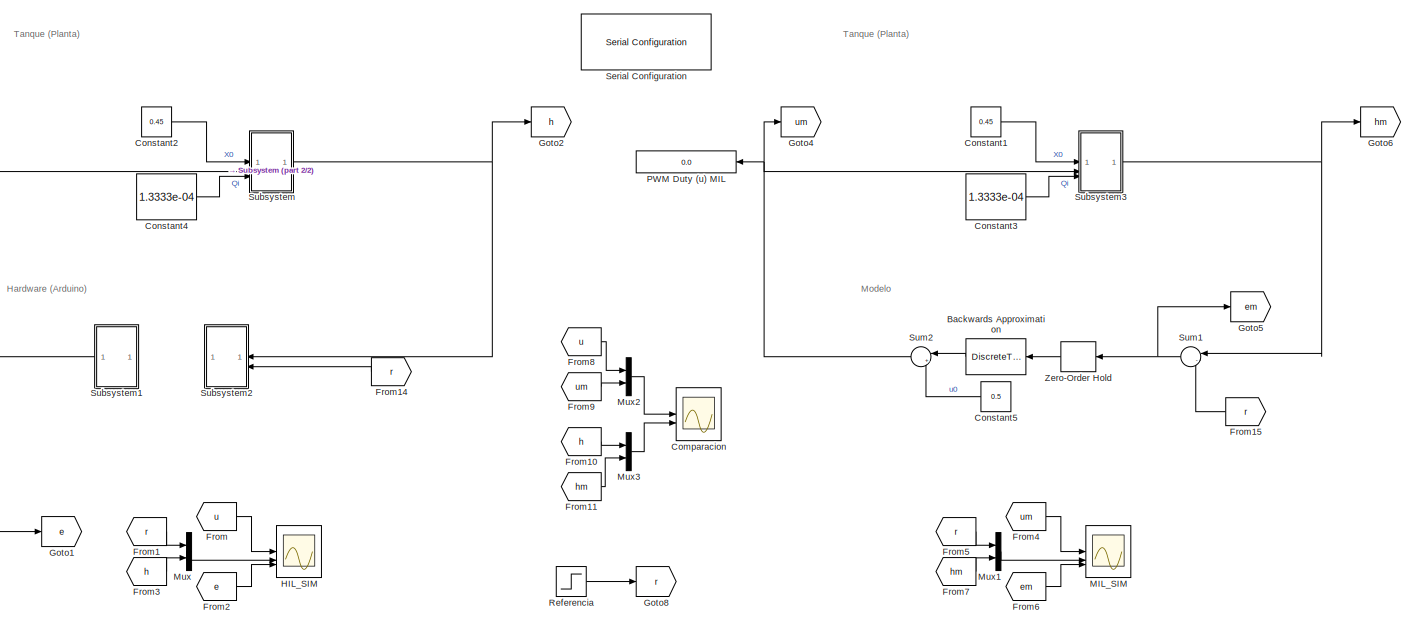
[diagram: root canvas - part 1/2, most of the canvas]
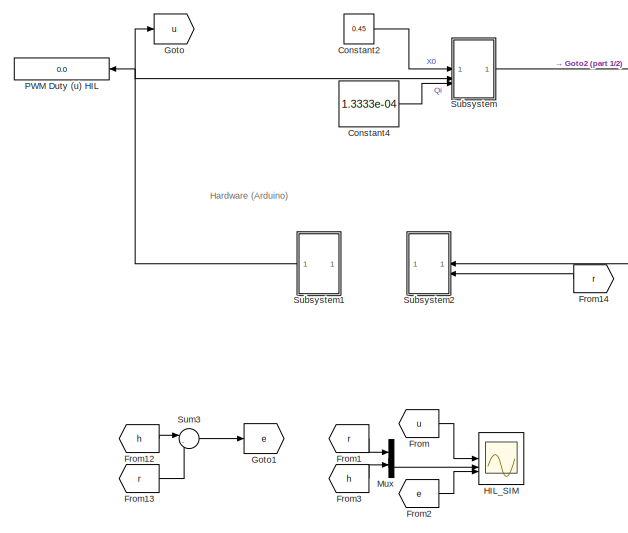
[diagram: root canvas - part 2/2, left side, full height]
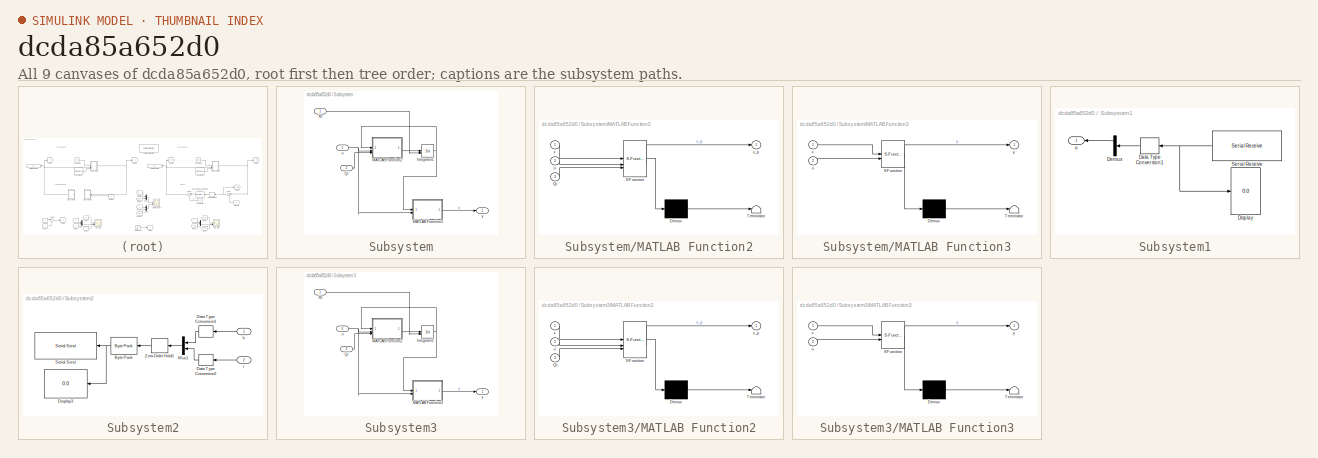
[diagram: thumbnail index - all 9 canvases of the model, root first then tree order]
MODEL slx_dcda85a652d0
KIND model
CONFIG AbsTol = auto
CONFIG EnableMultiTasking = off
CONFIG FixedStep = 0.001
CONFIG MaxStep = auto
CONFIG MinStep = auto
CONFIG RelTol = 1e-4
CONFIG SampleTimeConstraint = Unconstrained
CONFIG SolverName = VariableStepAuto
CONFIG StartTime = 0.0
CONFIG StopTime = 600
BLOCK [DiscreteTransferFcn] Backwards Approximation
  Denominator = [1 -1.9709 0.9709]
  InputPortMap = u0
  NameLocation = top
  Numerator = [-0.1459 0.1456 0]
  SampleTime = 1
  StateName = C_for
  a0EqualsOne = on
BLOCK [Scope] Comparacion
  Floating = off
  NumInputPorts = 2
  ScopeSpecificationString = Simulink.scopes.TimeScopeBlockCfg('CurrentConfiguration', extmgr.ConfigurationSet(extmgr.Configuration('Core','General UI',true,'FigureColor',[1 1 1]),extmgr.Configuration('Core','Source UI',true),extmgr.Configuration('Sources','WiredSimulink',true,'DataLoggingVariableName','ScopeData1'),extmgr.Configuration('Visuals','Time Domain',true,'SerializedDisplays',{struct('MinYLimReal','0.47973','MaxYLim...<+2653ch>
BLOCK [Constant] Constant1
  Value = 0.45
BLOCK [Constant] Constant2
  Value = 0.45
BLOCK [Constant] Constant3
  Value = 1.3333e-04
BLOCK [Constant] Constant4
  Value = 1.3333e-04
BLOCK [Constant] Constant5
  Value = 0.5
BLOCK [From] From
  GotoTag = u
BLOCK [From] From1
  GotoTag = r
BLOCK [From] From10
  GotoTag = h
BLOCK [From] From11
  GotoTag = hm
BLOCK [From] From12
  GotoTag = h
BLOCK [From] From13
  GotoTag = r
BLOCK [From] From14
  GotoTag = r
  NameLocation = top
BLOCK [From] From15
  GotoTag = r
  NameLocation = top
BLOCK [From] From2
  GotoTag = e
BLOCK [From] From3
  GotoTag = h
BLOCK [From] From4
  GotoTag = um
BLOCK [From] From5
  GotoTag = r
BLOCK [From] From6
  GotoTag = em
BLOCK [From] From7
  GotoTag = hm
BLOCK [From] From8
  GotoTag = u
BLOCK [From] From9
  GotoTag = um
BLOCK [Goto] Goto
  GotoTag = u
BLOCK [Goto] Goto1
  GotoTag = e
BLOCK [Goto] Goto2
  GotoTag = h
BLOCK [Goto] Goto4
  GotoTag = um
BLOCK [Goto] Goto5
  GotoTag = em
BLOCK [Goto] Goto6
  GotoTag = hm
BLOCK [Goto] Goto8
  GotoTag = r
BLOCK [Scope] HIL_SIM
  Floating = off
  NumInputPorts = 3
  ScopeSpecificationString = Simulink.scopes.TimeScopeBlockCfg('CurrentConfiguration', extmgr.ConfigurationSet(extmgr.Configuration('Core','General UI',true,'FigureColor',[1 1 1]),extmgr.Configuration('Core','Source UI',true),extmgr.Configuration('Sources','WiredSimulink',true,'DataLoggingVariableName','ScopeData1'),extmgr.Configuration('Visuals','Time Domain',true,'SerializedDisplays',{struct('MinYLimReal','0.50148','MaxYLim...<+3314ch>
BLOCK [Scope] MIL_SIM
  Floating = off
  NumInputPorts = 3
  ScopeSpecificationString = Simulink.scopes.TimeScopeBlockCfg('CurrentConfiguration', extmgr.ConfigurationSet(extmgr.Configuration('Core','General UI',true,'FigureColor',[1 1 1]),extmgr.Configuration('Core','Source UI',true),extmgr.Configuration('Sources','WiredSimulink',true,'DataLoggingVariableName','ScopeData2'),extmgr.Configuration('Visuals','Time Domain',true,'SerializedDisplays',{struct('MinYLimReal','0.47986','MaxYLim...<+3310ch>
BLOCK [Mux] Mux
  DisplayOption = bar
  Inputs = 2
BLOCK [Mux] Mux1
  DisplayOption = bar
  Inputs = 2
BLOCK [Mux] Mux2
  DisplayOption = bar
  Inputs = 2
BLOCK [Mux] Mux3
  DisplayOption = bar
  Inputs = 2
BLOCK [Display] PWM Duty (u) HIL
  Decimation = 1
  Format = decimal (Stored Integer)
  NameLocation = top
BLOCK [Display] PWM Duty (u) MIL
  Decimation = 1
  Format = decimal (Stored Integer)
  NameLocation = top
BLOCK [Step] Referencia
  After = 0.4
  Before = 0.45
  NameLocation = top
  SampleTime = 0
  Time = 10
BLOCK [Reference] Serial Configuration  REF=instrumentseriallib/Serial Configuration
  Priority = -200000
  SourceBlock = instrumentseriallib/Serial Configuration
  SourceType = system.SerialConfiguration
BLOCK [SubSystem] Subsystem
BLOCK [Integrator] Subsystem/Integrator1
  InitialConditionSource = external
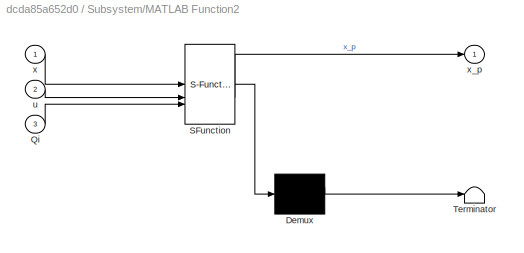
BLOCK [SubSystem] Subsystem/MATLAB Function2
  ErrorFcn = Stateflow.Translate.translate
  PermitHierarchicalResolution = ExplicitOnly
  SFBlockType = MATLAB Function
  TreatAsAtomicUnit = on
BLOCK [Demux] Subsystem/MATLAB Function2/ Demux 
  Outputs = 1
BLOCK [S-Function] Subsystem/MATLAB Function2/ SFunction 
  EnableBusSupport = on
  FunctionName = sf_sfun
  PortCounts = [3 2]
  SFcnIsStateOwnerBlock = off
  SFunctionDeploymentMode = off
  Tag = Stateflow S-Function 1
BLOCK [Terminator] Subsystem/MATLAB Function2/ Terminator 
BLOCK [Inport] Subsystem/MATLAB Function2/Qi
  Port = 3
BLOCK [Inport] Subsystem/MATLAB Function2/u
  Port = 2
BLOCK [Inport] Subsystem/MATLAB Function2/x
BLOCK [Outport] Subsystem/MATLAB Function2/x_p
BLOCK [SubSystem] Subsystem/MATLAB Function3
  ErrorFcn = Stateflow.Translate.translate
  PermitHierarchicalResolution = ExplicitOnly
  SFBlockType = MATLAB Function
  TreatAsAtomicUnit = on
BLOCK [Demux] Subsystem/MATLAB Function3/ Demux 
  Outputs = 1
BLOCK [S-Function] Subsystem/MATLAB Function3/ SFunction 
  EnableBusSupport = on
  FunctionName = sf_sfun
  PortCounts = [2 2]
  SFcnIsStateOwnerBlock = off
  SFunctionDeploymentMode = off
  Tag = Stateflow S-Function 4
BLOCK [Terminator] Subsystem/MATLAB Function3/ Terminator 
BLOCK [Inport] Subsystem/MATLAB Function3/u
  Port = 2
BLOCK [Inport] Subsystem/MATLAB Function3/x
BLOCK [Outport] Subsystem/MATLAB Function3/y
BLOCK [Inport] Subsystem/Qi
  Port = 3
BLOCK [Inport] Subsystem/X0
BLOCK [Inport] Subsystem/u
  Port = 2
BLOCK [Outport] Subsystem/y
BLOCK [SubSystem] Subsystem1
  NameLocation = top
BLOCK [DataTypeConversion] Subsystem1/Data Type Conversion1
  NameLocation = top
  OutDataTypeStr = double
  RndMeth = Floor
  SaturateOnIntegerOverflow = off
BLOCK [Demux] Subsystem1/Demux
  NameLocation = top
  Outputs = 3
BLOCK [Display] Subsystem1/Display
  Decimation = 1
  Format = decimal (Stored Integer)
  NameLocation = top
BLOCK [Reference] Subsystem1/Serial Receive  REF=instrumentseriallib/Serial Receive
  SourceBlock = instrumentseriallib/Serial Receive
  SourceType = system.SerialReceive
BLOCK [Outport] Subsystem1/u
  NameLocation = top
BLOCK [SubSystem] Subsystem2
  NameLocation = top
BLOCK [Reference] Subsystem2/Byte Pack  REF=svdutilitieslib/Byte Pack
  NameLocation = top
  SourceBlock = svdutilitieslib/Byte Pack
  SourceType = Byte pack
BLOCK [DataTypeConversion] Subsystem2/Data Type Conversion1
  NameLocation = top
  OutDataTypeStr = single
  RndMeth = Floor
  SaturateOnIntegerOverflow = off
BLOCK [DataTypeConversion] Subsystem2/Data Type Conversion2
  OutDataTypeStr = single
  RndMeth = Floor
  SaturateOnIntegerOverflow = off
BLOCK [Display] Subsystem2/Display3
  Decimation = 1
  Format = hex (Stored Integer)
  NameLocation = top
BLOCK [Mux] Subsystem2/Mux1
  DisplayOption = bar
  Inputs = 2
  NameLocation = top
BLOCK [Reference] Subsystem2/Serial Send  REF=instrumentseriallib/Serial Send
  SourceBlock = instrumentseriallib/Serial Send
  SourceType = system.SerialSend
BLOCK [ZeroOrderHold] Subsystem2/Zero-Order Hold1
  NameLocation = top
BLOCK [Inport] Subsystem2/h
BLOCK [Inport] Subsystem2/r
  Port = 2
BLOCK [SubSystem] Subsystem3
BLOCK [Integrator] Subsystem3/Integrator1
  InitialConditionSource = external
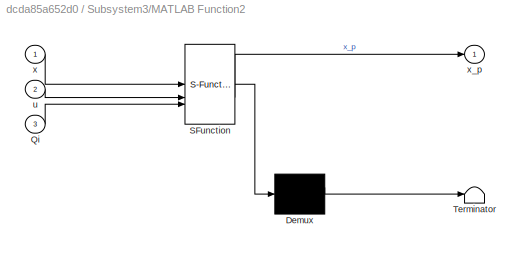
BLOCK [SubSystem] Subsystem3/MATLAB Function2
  ErrorFcn = Stateflow.Translate.translate
  PermitHierarchicalResolution = ExplicitOnly
  SFBlockType = MATLAB Function
  TreatAsAtomicUnit = on
BLOCK [Demux] Subsystem3/MATLAB Function2/ Demux 
  Outputs = 1
BLOCK [S-Function] Subsystem3/MATLAB Function2/ SFunction 
  EnableBusSupport = on
  FunctionName = sf_sfun
  PortCounts = [3 2]
  SFcnIsStateOwnerBlock = off
  SFunctionDeploymentMode = off
  Tag = Stateflow S-Function 2
BLOCK [Terminator] Subsystem3/MATLAB Function2/ Terminator 
BLOCK [Inport] Subsystem3/MATLAB Function2/Qi
  Port = 3
BLOCK [Inport] Subsystem3/MATLAB Function2/u
  Port = 2
BLOCK [Inport] Subsystem3/MATLAB Function2/x
BLOCK [Outport] Subsystem3/MATLAB Function2/x_p
BLOCK [SubSystem] Subsystem3/MATLAB Function3
  ErrorFcn = Stateflow.Translate.translate
  PermitHierarchicalResolution = ExplicitOnly
  SFBlockType = MATLAB Function
  TreatAsAtomicUnit = on
BLOCK [Demux] Subsystem3/MATLAB Function3/ Demux 
  Outputs = 1
BLOCK [S-Function] Subsystem3/MATLAB Function3/ SFunction 
  EnableBusSupport = on
  FunctionName = sf_sfun
  PortCounts = [2 2]
  SFcnIsStateOwnerBlock = off
  SFunctionDeploymentMode = off
  Tag = Stateflow S-Function 3
BLOCK [Terminator] Subsystem3/MATLAB Function3/ Terminator 
BLOCK [Inport] Subsystem3/MATLAB Function3/u
  Port = 2
BLOCK [Inport] Subsystem3/MATLAB Function3/x
BLOCK [Outport] Subsystem3/MATLAB Function3/y
BLOCK [Inport] Subsystem3/Qi
  Port = 3
BLOCK [Inport] Subsystem3/X0
BLOCK [Inport] Subsystem3/u
  Port = 2
BLOCK [Outport] Subsystem3/y
BLOCK [Sum] Sum1
  Inputs = |-+
  NameLocation = top
BLOCK [Sum] Sum2
  Inputs = |++
  NameLocation = top
BLOCK [Sum] Sum3
  Inputs = |-+
BLOCK [ZeroOrderHold] Zero-Order Hold
ANNOTATION (root): Hardware (Arduino)
ANNOTATION (root): Modelo
ANNOTATION (root): Tanque (Planta)
LINE Backwards Approximation:1 -> Sum2:1
LINE Constant1:1 -> Subsystem3:1
LINE Constant2:1 -> Subsystem:1
LINE Constant3:1 -> Subsystem3:3
LINE Constant4:1 -> Subsystem:3
LINE Constant5:1 -> Sum2:2
LINE From10:1 -> Mux3:1
LINE From11:1 -> Mux3:2
LINE From12:1 -> Sum3:1
LINE From13:1 -> Sum3:2
LINE From14:1 -> Subsystem2:2
LINE From15:1 -> Sum1:2
LINE From1:1 -> Mux:1
LINE From2:1 -> HIL_SIM:3
LINE From3:1 -> Mux:2
LINE From4:1 -> MIL_SIM:1
LINE From5:1 -> Mux1:1
LINE From6:1 -> MIL_SIM:3
LINE From7:1 -> Mux1:2
LINE From8:1 -> Mux2:1
LINE From9:1 -> Mux2:2
LINE From:1 -> HIL_SIM:1
LINE Mux1:1 -> MIL_SIM:2
LINE Mux2:1 -> Comparacion:1
LINE Mux3:1 -> Comparacion:2
LINE Mux:1 -> HIL_SIM:2
LINE Referencia:1 -> Goto8:1
NET Subsystem/Integrator1:1 -> Subsystem/MATLAB Function2:1, Subsystem/MATLAB Function3:1
LINE Subsystem/MATLAB Function2:1 -> Subsystem/Integrator1:1
LINE Subsystem/MATLAB Function3:1 -> Subsystem/y:1
LINE Subsystem/Qi:1 -> Subsystem/MATLAB Function2:3
LINE Subsystem/X0:1 -> Subsystem/Integrator1:2
NET Subsystem/u:1 -> Subsystem/MATLAB Function2:2, Subsystem/MATLAB Function3:2
LINE Subsystem1/Data Type Conversion1:1 -> Subsystem1/Demux:1
LINE Subsystem1/Demux:1 -> Subsystem1/u:1
NET Subsystem1/Serial Receive:1 -> Subsystem1/Data Type Conversion1:1, Subsystem1/Display:1
NET Subsystem1:1 -> Goto:1, PWM Duty (u) HIL:1, Subsystem:2
NET Subsystem2/Byte Pack:1 -> Subsystem2/Display3:1, Subsystem2/Serial Send:1
LINE Subsystem2/Data Type Conversion1:1 -> Subsystem2/Mux1:1
LINE Subsystem2/Data Type Conversion2:1 -> Subsystem2/Mux1:2
LINE Subsystem2/Mux1:1 -> Subsystem2/Zero-Order Hold1:1
LINE Subsystem2/Zero-Order Hold1:1 -> Subsystem2/Byte Pack:1
LINE Subsystem2/h:1 -> Subsystem2/Data Type Conversion1:1
LINE Subsystem2/r:1 -> Subsystem2/Data Type Conversion2:1
NET Subsystem3/Integrator1:1 -> Subsystem3/MATLAB Function2:1, Subsystem3/MATLAB Function3:1
LINE Subsystem3/MATLAB Function2:1 -> Subsystem3/Integrator1:1
LINE Subsystem3/MATLAB Function3:1 -> Subsystem3/y:1
LINE Subsystem3/Qi:1 -> Subsystem3/MATLAB Function2:3
LINE Subsystem3/X0:1 -> Subsystem3/Integrator1:2
NET Subsystem3/u:1 -> Subsystem3/MATLAB Function2:2, Subsystem3/MATLAB Function3:2
NET Subsystem3:1 -> Goto6:1, Sum1:1
NET Subsystem:1 -> Goto2:1, Subsystem2:1
NET Sum1:1 -> Goto5:1, Zero-Order Hold:1
NET Sum2:1 -> Goto4:1, PWM Duty (u) MIL:1, Subsystem3:2
LINE Sum3:1 -> Goto1:1
LINE Zero-Order Hold:1 -> Backwards Approximation:1
note: NET lines group one-source signal fan-out (src -> all destinations, sorted); 1:1 wires keep LINE
CHART Subsystem3/MATLAB Function2 states=1 transitions=1
  STATE_LABEL 'eML_blk_kernel()'
  STATE_LABEL 'SCRIPT:\nfunction x_p = f(x, u, Qi)\n    d = 0.01065;\n    L1 = 0.1;\n    L2 = 0.4;\n    L = 0.9;\n    g = 9.8;\n    x_p = (-sqrt(abs(2*g*x))*d^2/4*u*pi + Qi)/(L1+(L2-L1)*x/L)^2;'
CHART Subsystem3/MATLAB Function3 states=1 transitions=1
  STATE_LABEL 'eML_blk_kernel()'
  STATE_LABEL 'SCRIPT:\nfunction y = g(x, u)\n    y = x;'
CHART Subsystem/MATLAB Function3 states=1 transitions=1
  STATE_LABEL 'eML_blk_kernel()'
  STATE_LABEL 'SCRIPT:\nfunction y = g(x, u)\n    y = x;'
CHART Subsystem/MATLAB Function2 states=1 transitions=1
  STATE_LABEL 'eML_blk_kernel()'
  STATE_LABEL 'SCRIPT:\nfunction x_p = f(x, u, Qi)\n    d = 0.01065;\n    L1 = 0.1;\n    L2 = 0.4;\n    L = 0.9;\n    g = 9.8;\n    x_p = (-sqrt(abs(2*g*x))*d^2/4*u*pi + Qi)/(L1+(L2-L1)*x/L)^2;'
CHART  states=0 transitions=0
CHART  states=0 transitions=0
CHART  states=0 transitions=0
CHART  states=0 transitions=0
